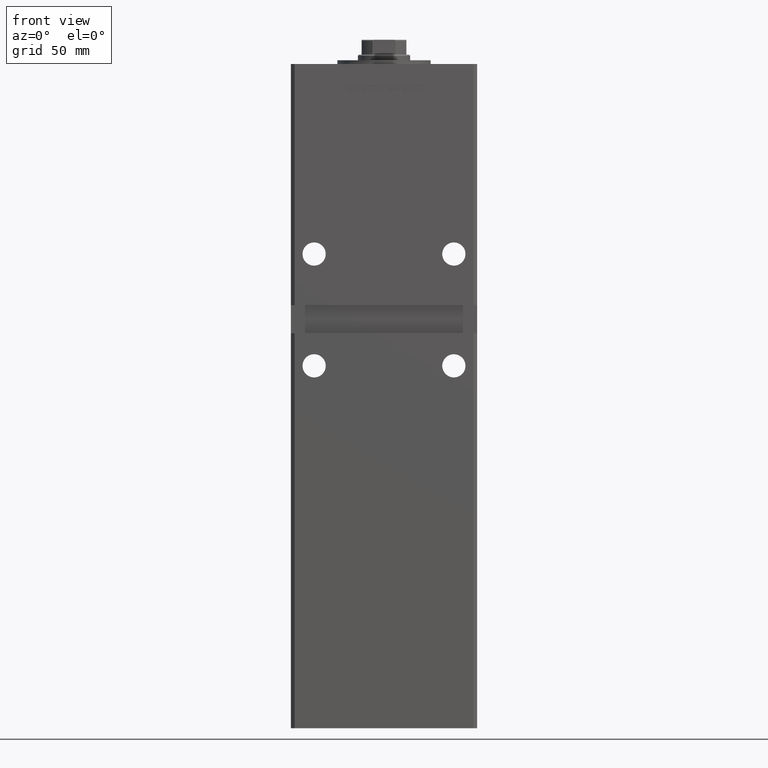
[diagram: clean part render]
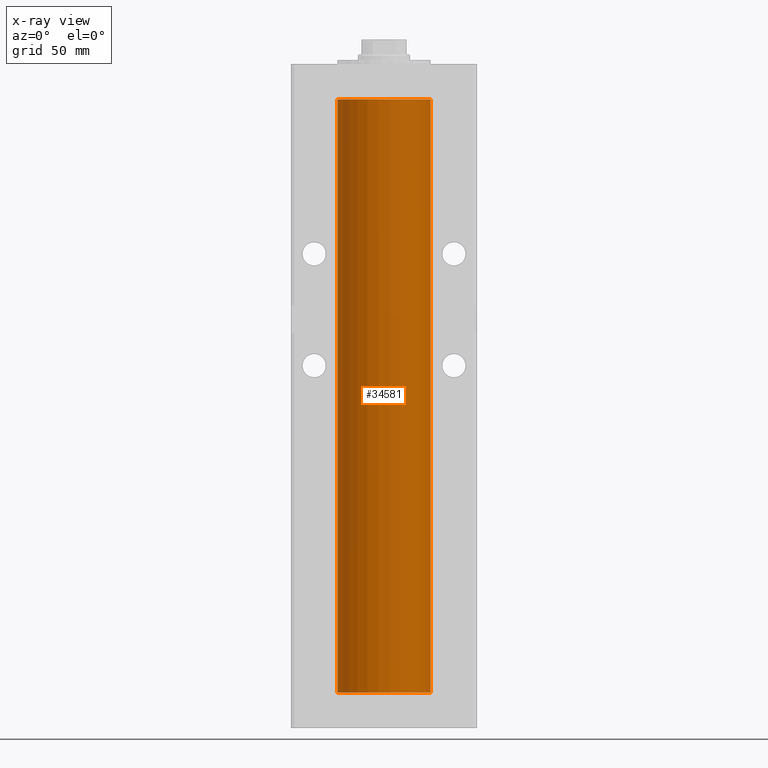
[diagram: x-ray — body ghosted, one internal face saturated and labeled with its STEP entity id]
A machine part, front view, then the same camera in x-ray: the body is ghosted and one INTERNAL B-rep face — a face not visible from any outside direction — is saturated and labeled: STEP entity #34581.
In plain terms, the highlighted cylindrical surface (partial cylindrical patch) has radius 25 mm, axis along (-0, -0, -1).
Its self-contained STEP definition (entity closure, byte-faithful):
#1297 = VERTEX_POINT ( 'NONE', #26896 ) ;
#1570 = VERTEX_POINT ( 'NONE', #40987 ) ;
#3517 = AXIS2_PLACEMENT_3D ( 'NONE', #32092, #18916, #28068 ) ;
#7179 = CIRCLE ( 'NONE', #14025, 25.00000000000000000 ) ;
#8677 = LINE ( 'NONE', #37421, #24716 ) ;
#12546 = AXIS2_PLACEMENT_3D ( 'NONE', #36129, #35330, #27804 ) ;
#13118 = CARTESIAN_POINT ( 'NONE',  ( 25.00000000000000000, 3.061616997868383043E-15, 318.5000000000000000 ) ) ;
#14025 = AXIS2_PLACEMENT_3D ( 'NONE', #29726, #46124, #29994 ) ;
#15683 = FACE_OUTER_BOUND ( 'NONE', #51194, .T. ) ;
#15704 = EDGE_CURVE ( 'NONE', #43529, #1297, #19780, .T. ) ;
#18916 = DIRECTION ( 'NONE',  ( -0.000000000000000000, 0.000000000000000000, 1.000000000000000000 ) ) ;
#19780 = CIRCLE ( 'NONE', #3517, 25.00000000000000000 ) ;
#20871 = CARTESIAN_POINT ( 'NONE',  ( -25.00000000000000000, 0.000000000000000000, 0.000000000000000000 ) ) ;
#24716 = VECTOR ( 'NONE', #41988, 1000.000000000000000 ) ;
#26366 = EDGE_CURVE ( 'NONE', #1570, #1297, #37314, .T. ) ;
#26896 = CARTESIAN_POINT ( 'NONE',  ( 25.00000000000000000, 3.061616997868383043E-15, 0.000000000000000000 ) ) ;
#27333 = ORIENTED_EDGE ( 'NONE', *, *, #15704, .F. ) ;
#27754 = EDGE_CURVE ( 'NONE', #35522, #1570, #7179, .T. ) ;
#27804 = DIRECTION ( 'NONE',  ( -1.000000000000000000, 0.000000000000000000, 0.000000000000000000 ) ) ;
#28068 = DIRECTION ( 'NONE',  ( 1.000000000000000000, 0.000000000000000000, 0.000000000000000000 ) ) ;
#29726 = CARTESIAN_POINT ( 'NONE',  ( 0.000000000000000000, 0.000000000000000000, 318.5000000000000000 ) ) ;
#29994 = DIRECTION ( 'NONE',  ( 1.000000000000000000, 0.000000000000000000, 0.000000000000000000 ) ) ;
#31272 = VECTOR ( 'NONE', #41622, 1000.000000000000000 ) ;
#32092 = CARTESIAN_POINT ( 'NONE',  ( 0.000000000000000000, 0.000000000000000000, 0.000000000000000000 ) ) ;
#34581 = ADVANCED_FACE ( 'NONE', ( #15683 ), #35075, .F. ) ;
#35075 = CYLINDRICAL_SURFACE ( 'NONE', #12546, 25.00000000000000000 ) ;
#35330 = DIRECTION ( 'NONE',  ( -0.000000000000000000, -0.000000000000000000, -1.000000000000000000 ) ) ;
#35522 = VERTEX_POINT ( 'NONE', #38247 ) ;
#36129 = CARTESIAN_POINT ( 'NONE',  ( 0.000000000000000000, 0.000000000000000000, 318.5000000000000000 ) ) ;
#37037 = ORIENTED_EDGE ( 'NONE', *, *, #40314, .F. ) ;
#37314 = LINE ( 'NONE', #13118, #31272 ) ;
#37421 = CARTESIAN_POINT ( 'NONE',  ( -25.00000000000000000, 0.000000000000000000, 318.5000000000000000 ) ) ;
#38247 = CARTESIAN_POINT ( 'NONE',  ( -25.00000000000000000, 0.000000000000000000, 318.5000000000000000 ) ) ;
#40314 = EDGE_CURVE ( 'NONE', #35522, #43529, #8677, .T. ) ;
#40987 = CARTESIAN_POINT ( 'NONE',  ( 25.00000000000000000, 3.061616997868383043E-15, 318.5000000000000000 ) ) ;
#41622 = DIRECTION ( 'NONE',  ( -0.000000000000000000, -0.000000000000000000, -1.000000000000000000 ) ) ;
#41988 = DIRECTION ( 'NONE',  ( -0.000000000000000000, -0.000000000000000000, -1.000000000000000000 ) ) ;
#43529 = VERTEX_POINT ( 'NONE', #20871 ) ;
#45468 = ORIENTED_EDGE ( 'NONE', *, *, #27754, .T. ) ;
#46124 = DIRECTION ( 'NONE',  ( -0.000000000000000000, 0.000000000000000000, 1.000000000000000000 ) ) ;
#47577 = ORIENTED_EDGE ( 'NONE', *, *, #26366, .T. ) ;
#51194 = EDGE_LOOP ( 'NONE', ( #45468, #47577, #27333, #37037 ) ) ;